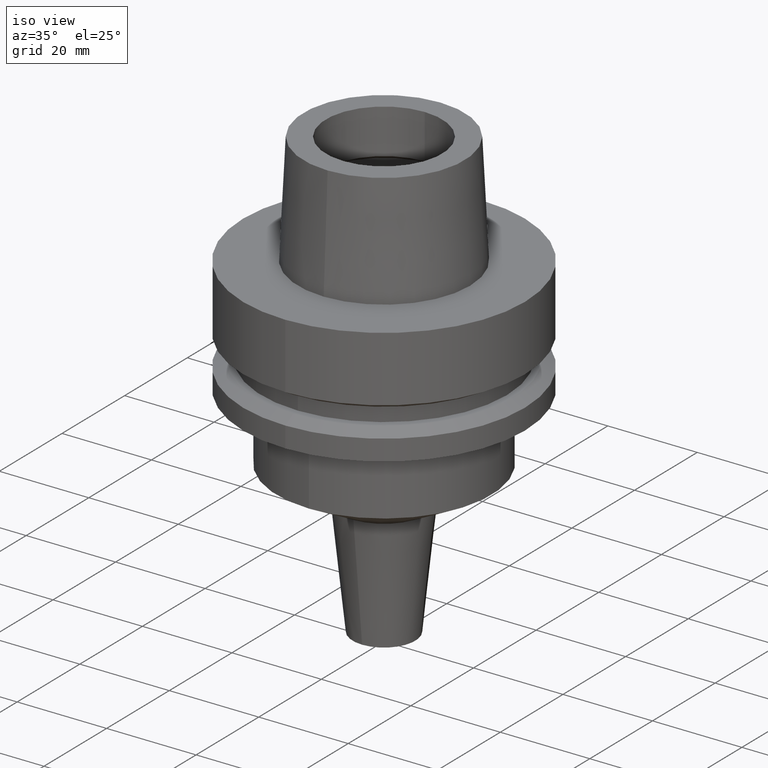
[diagram: clean part render]
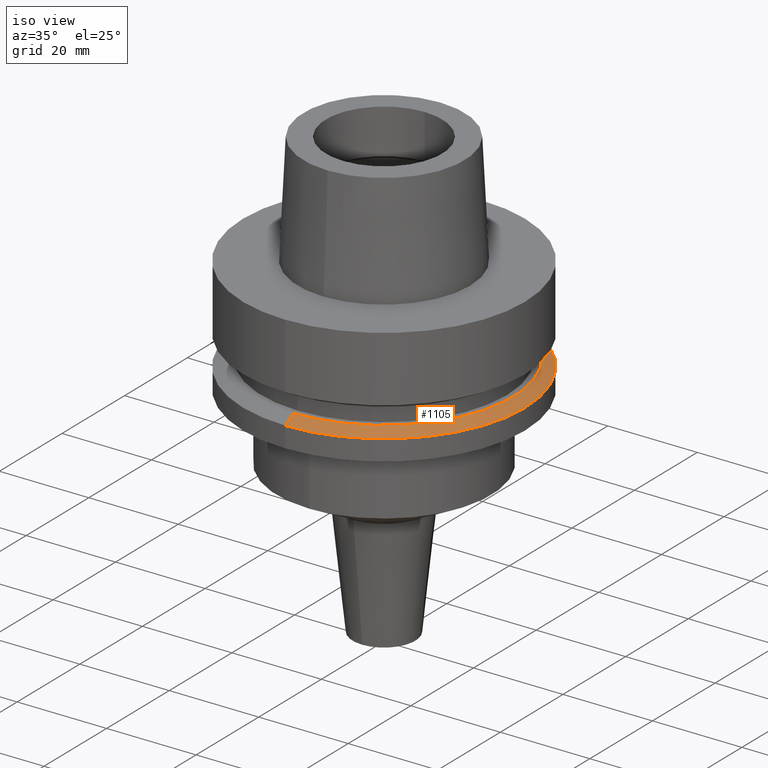
[diagram: same view with one face highlighted and labeled with its STEP entity id]
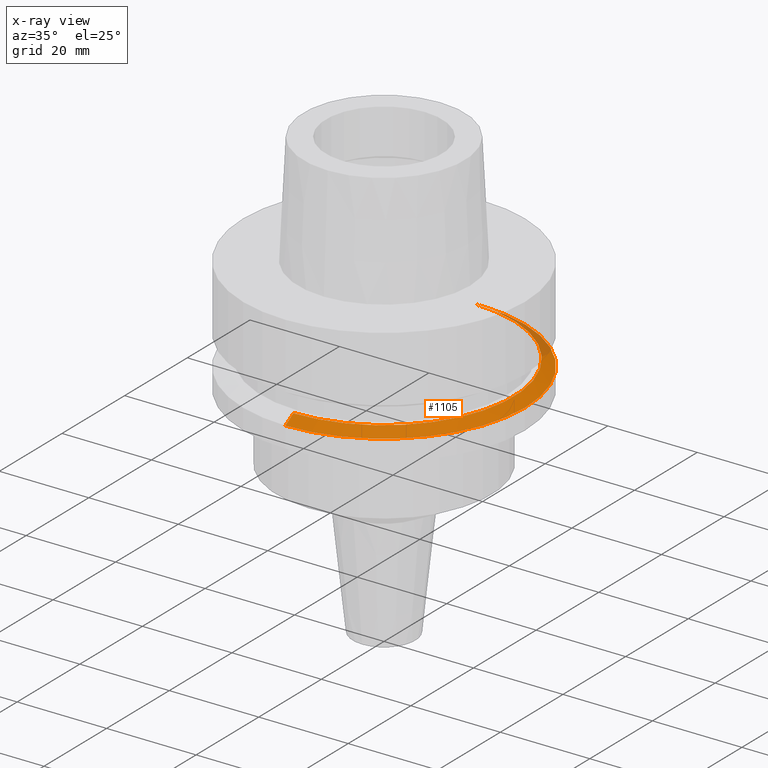
[diagram: x-ray of the same camera — body ghosted, the highlighted face saturated]
A machine part, iso view. The second image highlights one B-rep face of the part: STEP entity #1105.
The next image is the same camera in x-ray: the body ghosted, the highlighted face saturated — about 7% of this face is hidden behind the body in this view.
In plain terms, the highlighted conical surface has half-angle 60 deg.
Its self-contained STEP definition (entity closure, byte-faithful):
#194=CARTESIAN_POINT('',(0.E0,0.E0,-1.9875E1));
#195=DIRECTION('',(0.E0,0.E0,-1.E0));
#196=DIRECTION('',(0.E0,1.E0,0.E0));
#197=AXIS2_PLACEMENT_3D('',#194,#195,#196);
#218=DIRECTION('',(0.E0,-8.660254037844E-1,-5.000000000001E-1));
#219=VECTOR('',#218,3.004998149520E0);
#220=CARTESIAN_POINT('',(0.E0,-2.889759526419E1,-1.9875E1));
#221=LINE('',#220,#219);
#233=DIRECTION('',(0.E0,8.660254037844E-1,-5.000000000001E-1));
#234=VECTOR('',#233,3.004998149520E0);
#235=CARTESIAN_POINT('',(0.E0,2.889759526419E1,-1.9875E1));
#236=LINE('',#235,#234);
#240=CARTESIAN_POINT('',(0.E0,0.E0,-2.137749907476E1));
#241=DIRECTION('',(0.E0,0.E0,-1.E0));
#242=DIRECTION('',(0.E0,1.E0,0.E0));
#243=AXIS2_PLACEMENT_3D('',#240,#241,#242);
#868=CARTESIAN_POINT('',(0.E0,3.15E1,-2.137749907476E1));
#869=VERTEX_POINT('',#868);
#870=CARTESIAN_POINT('',(0.E0,-3.15E1,-2.137749907476E1));
#871=VERTEX_POINT('',#870);
#872=CARTESIAN_POINT('',(0.E0,2.889759526419E1,-1.9875E1));
#873=VERTEX_POINT('',#872);
#874=CARTESIAN_POINT('',(0.E0,-2.889759526419E1,-1.9875E1));
#875=VERTEX_POINT('',#874);
#1093=CARTESIAN_POINT('',(0.E0,0.E0,-2.062624953738E1));
#1094=DIRECTION('',(0.E0,0.E0,-1.E0));
#1095=DIRECTION('',(0.E0,-1.E0,0.E0));
#1096=AXIS2_PLACEMENT_3D('',#1093,#1094,#1095);
#1097=CONICAL_SURFACE('',#1096,3.019879763210E1,6.E1);
#1098=ORIENTED_EDGE('',*,*,#1083,.T.);
#1100=ORIENTED_EDGE('',*,*,#1099,.T.);
#1101=ORIENTED_EDGE('',*,*,#1086,.F.);
#1102=ORIENTED_EDGE('',*,*,#1069,.F.);
#1103=EDGE_LOOP('',(#1098,#1100,#1101,#1102));
#1104=FACE_OUTER_BOUND('',#1103,.F.);
#198=CIRCLE('',#197,2.889759526419E1);
#244=CIRCLE('',#243,3.15E1);
#1069=EDGE_CURVE('',#873,#875,#198,.T.);
#1083=EDGE_CURVE('',#873,#869,#236,.T.);
#1086=EDGE_CURVE('',#875,#871,#221,.T.);
#1099=EDGE_CURVE('',#869,#871,#244,.T.);
#1105=ADVANCED_FACE('',(#1104),#1097,.T.);